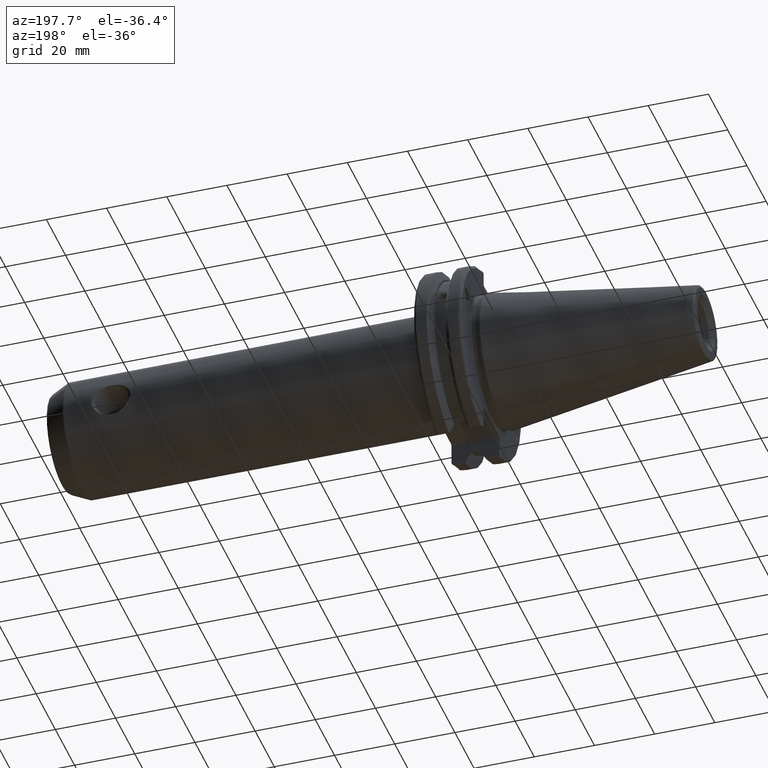
[diagram: clean part render]
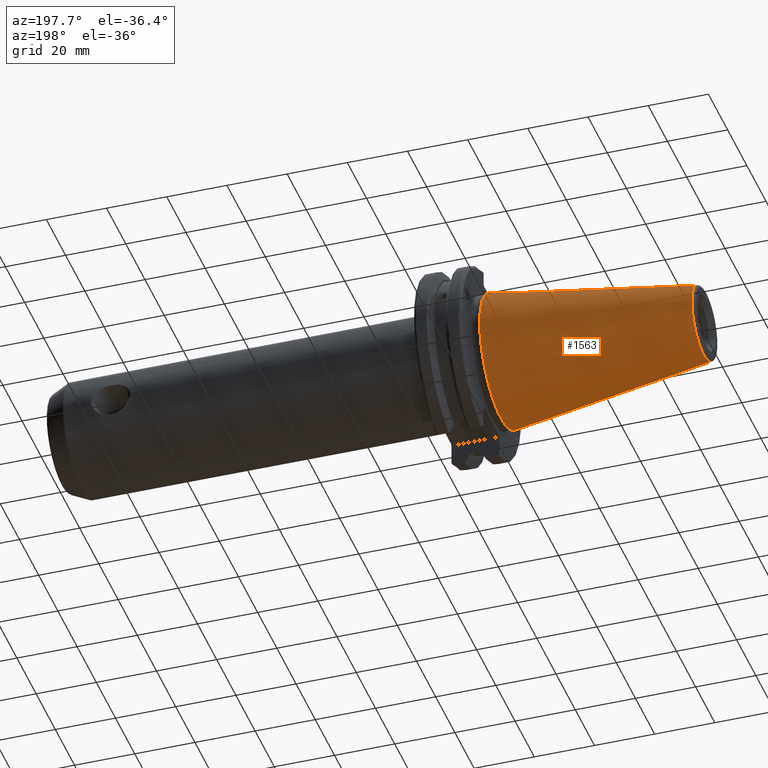
[diagram: same view with one face highlighted and labeled with its STEP entity id]
A machine part, auxiliary view. The second image highlights one B-rep face of the part: STEP entity #1563.
In plain terms, the highlighted conical surface has half-angle 8.297 deg.
Its self-contained STEP definition (entity closure, byte-faithful):
#200=FACE_OUTER_BOUND('',#303,.T.);
#303=EDGE_LOOP('',(#1361,#1362,#1363,#1364,#1365));
#393=CIRCLE('',#1749,12.3966635780937);
#394=CIRCLE('',#1750,12.3966635780937);
#398=CIRCLE('',#1756,22.225);
#482=LINE('',#3031,#574);
#574=VECTOR('',#2154,17.2484375);
#770=VERTEX_POINT('',#3018);
#771=VERTEX_POINT('',#3019);
#774=VERTEX_POINT('',#3029);
#982=EDGE_CURVE('',#770,#771,#393,.T.);
#983=EDGE_CURVE('',#771,#770,#394,.T.);
#987=EDGE_CURVE('',#774,#774,#398,.T.);
#988=EDGE_CURVE('',#774,#771,#482,.T.);
#1361=ORIENTED_EDGE('',*,*,#987,.F.);
#1362=ORIENTED_EDGE('',*,*,#988,.T.);
#1363=ORIENTED_EDGE('',*,*,#982,.F.);
#1364=ORIENTED_EDGE('',*,*,#983,.F.);
#1365=ORIENTED_EDGE('',*,*,#988,.F.);
#1499=CONICAL_SURFACE('',#1755,17.2484375,0.144812498238939);
#1563=ADVANCED_FACE('',(#200),#1499,.T.);
#1749=AXIS2_PLACEMENT_3D('',#3020,#2138,#2139);
#1750=AXIS2_PLACEMENT_3D('',#3021,#2140,#2141);
#1755=AXIS2_PLACEMENT_3D('',#3028,#2150,#2151);
#1756=AXIS2_PLACEMENT_3D('',#3030,#2152,#2153);
#2138=DIRECTION('center_axis',(-1.,0.,0.));
#2139=DIRECTION('ref_axis',(0.,-1.,3.06161699786838E-17));
#2140=DIRECTION('center_axis',(-1.,0.,0.));
#2141=DIRECTION('ref_axis',(0.,-1.,3.06161699786838E-17));
#2150=DIRECTION('center_axis',(1.,0.,0.));
#2151=DIRECTION('ref_axis',(0.,1.,0.));
#2152=DIRECTION('center_axis',(1.,0.,0.));
#2153=DIRECTION('ref_axis',(0.,0.,-1.));
#2154=DIRECTION('',(-0.989532981063282,0.144306893071729,1.76724974695192E-17));
#3018=CARTESIAN_POINT('',(-67.3943068930717,-1.5181534371019E-15,12.3966635780937));
#3019=CARTESIAN_POINT('',(-67.3943068930718,-12.3966635780937,-1.5181534371019E-15));
#3020=CARTESIAN_POINT('Origin',(-67.3943068930717,0.,-1.89769179637738E-15));
#3021=CARTESIAN_POINT('Origin',(-67.3943068930717,0.,-1.89769179637738E-15));
#3028=CARTESIAN_POINT('Origin',(-34.125,0.,0.));
#3029=CARTESIAN_POINT('',(0.,-22.225,-2.72177751110499E-15));
#3030=CARTESIAN_POINT('Origin',(0.,0.,0.));
#3031=CARTESIAN_POINT('',(-34.125,-17.2484375,-2.11232437746682E-15));